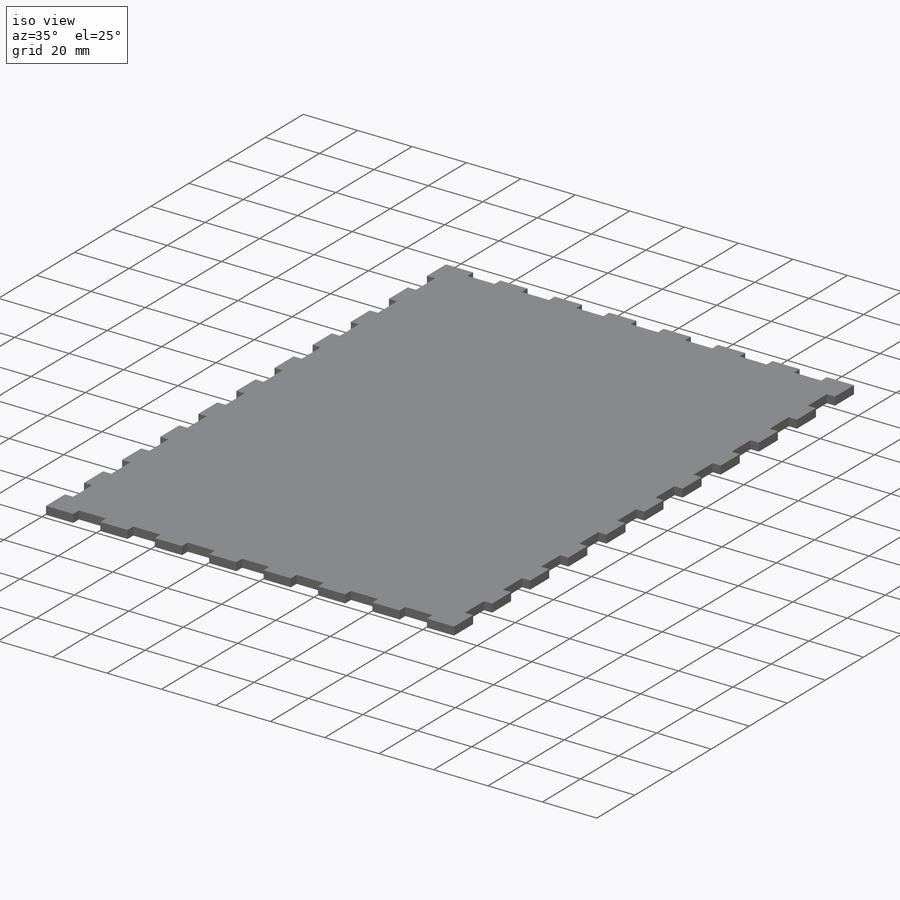
[diagram: iso view]
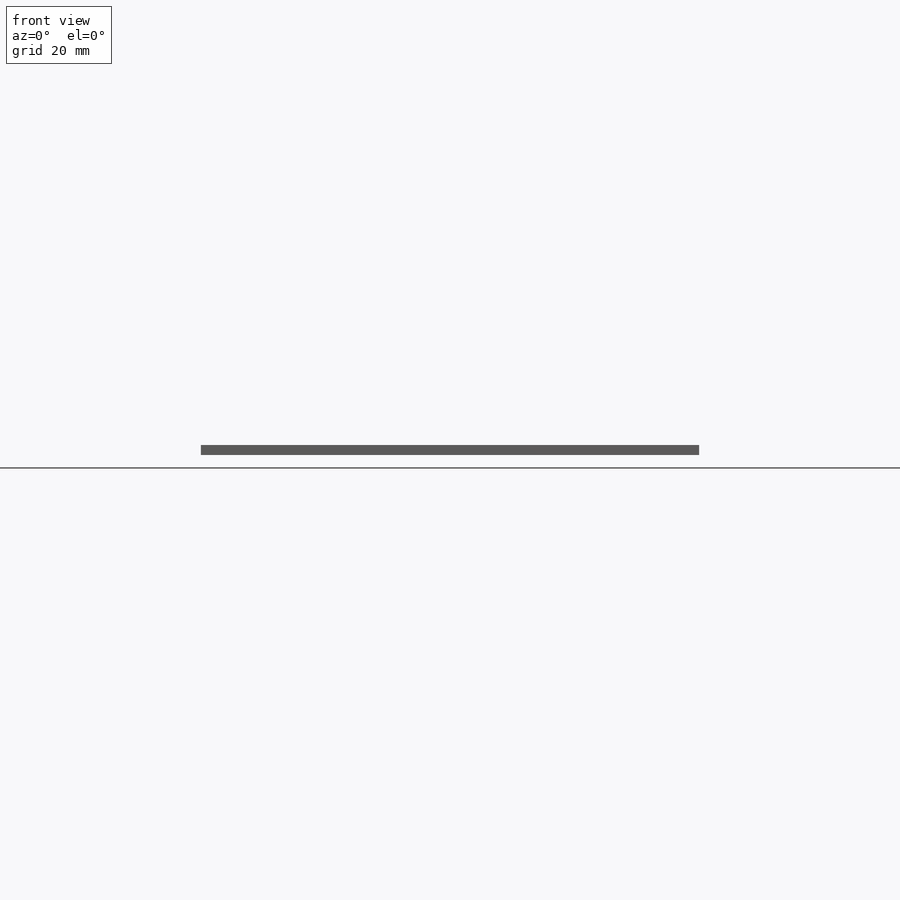
[diagram: front view]
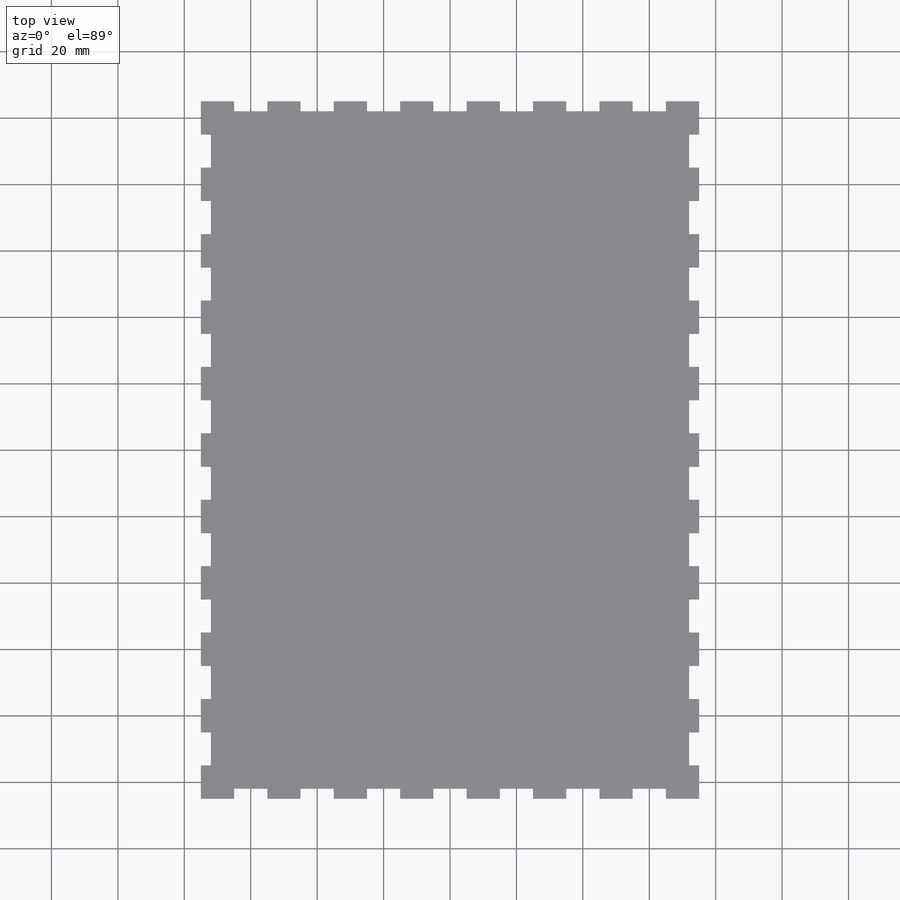
[diagram: top view]
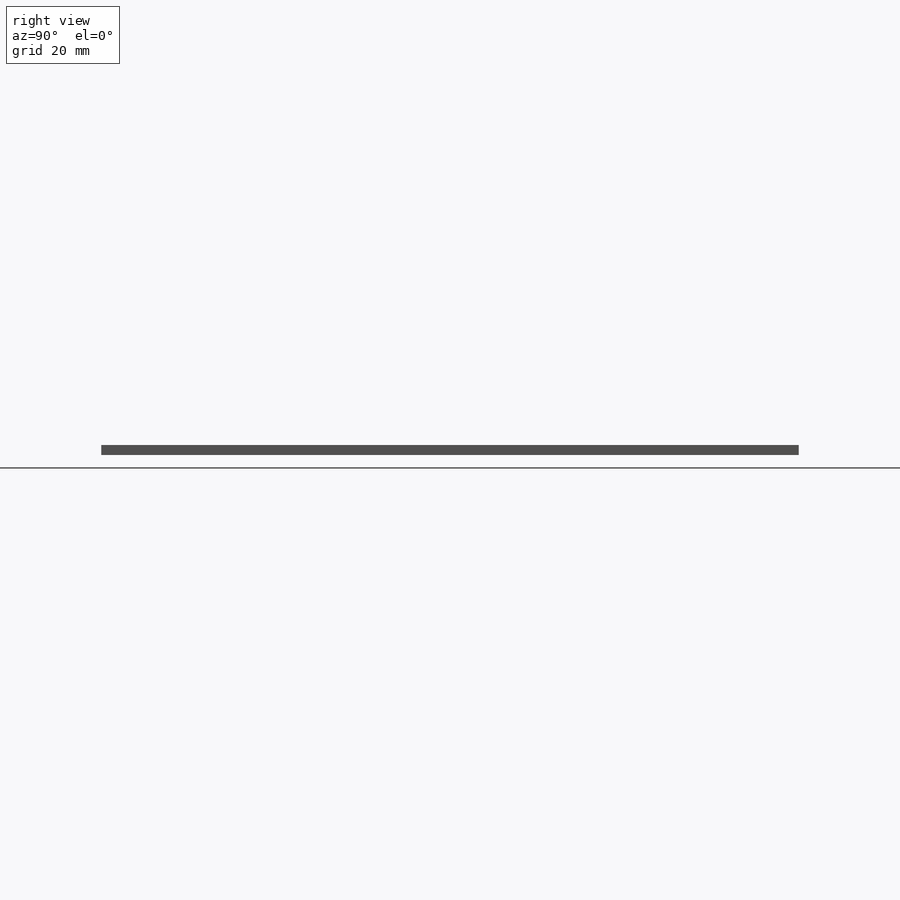
[diagram: right view]
SOLIDWORKS PART (.sldprt)
format: sldprt  version: not decoded by parser v0  size: 235,520 bytes
history: native  units: mm
features: sketch x3, cut_extrude x2, pattern_linear x2, mirror x2, material x1, extrude x1 (+13 scaffold rows collapsed)
feature tree (24):
  scaffold x13  (default folders/planes/origin — collapsed)
  material  "Material <not specified>"
  sketch  "Sketch1"  dims[D1=150.0mm D2=210.0mm]
  extrude  "Boss-Extrude1"  Depth=3mm
  sketch  "Sketch2"  dims[D1=10.0mm D2=3.0mm D3=10.0mm]
  cut_extrude  "Cut-Extrude1"  Depth=3mm
  pattern_linear  "LPattern1"  Count1=7 Count2=1 Spacing1=20mm Spacing2=10mm
  mirror  "Mirror1"
  sketch  "Sketch4"  dims[D1=10.0mm D2=3.0mm D3=10.0mm]
  cut_extrude  "Cut-Extrude2"  Depth=3mm
  pattern_linear  "LPattern2"  Count1=10 Count2=1 Spacing1=20mm Spacing2=10mm
  mirror  "Mirror2"
decode coverage: 8 of 10 modeling features carry decoded parameters
note: suppression state not decoded; provenance and decode notes live in map.json
